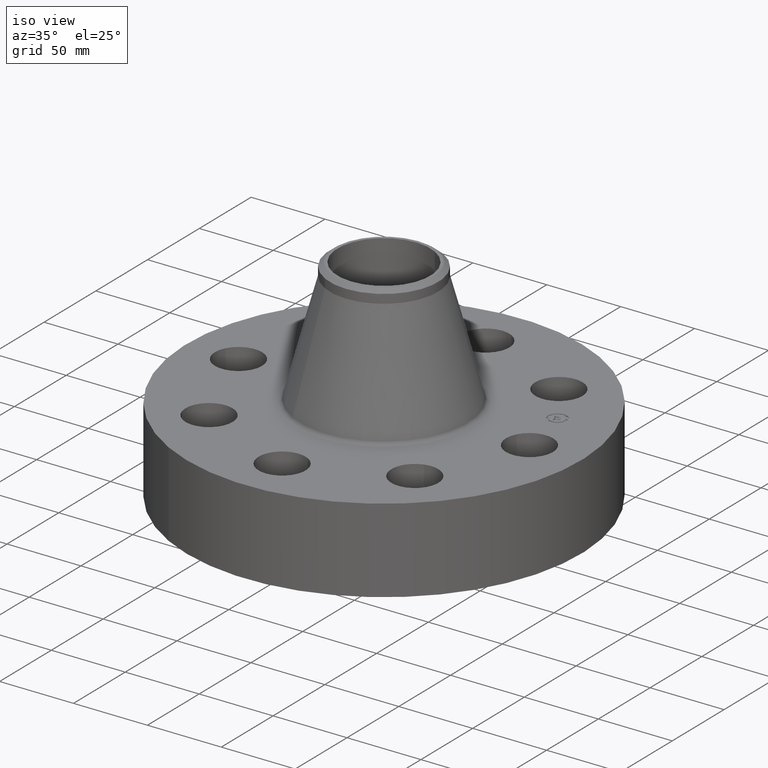
[diagram: clean part render]
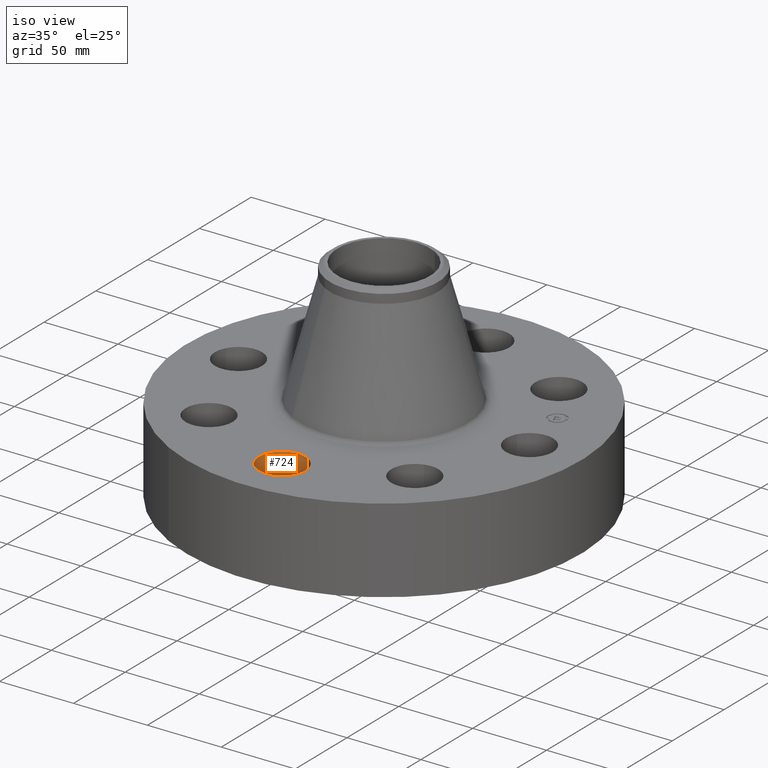
[diagram: same view with one face highlighted and labeled with its STEP entity id]
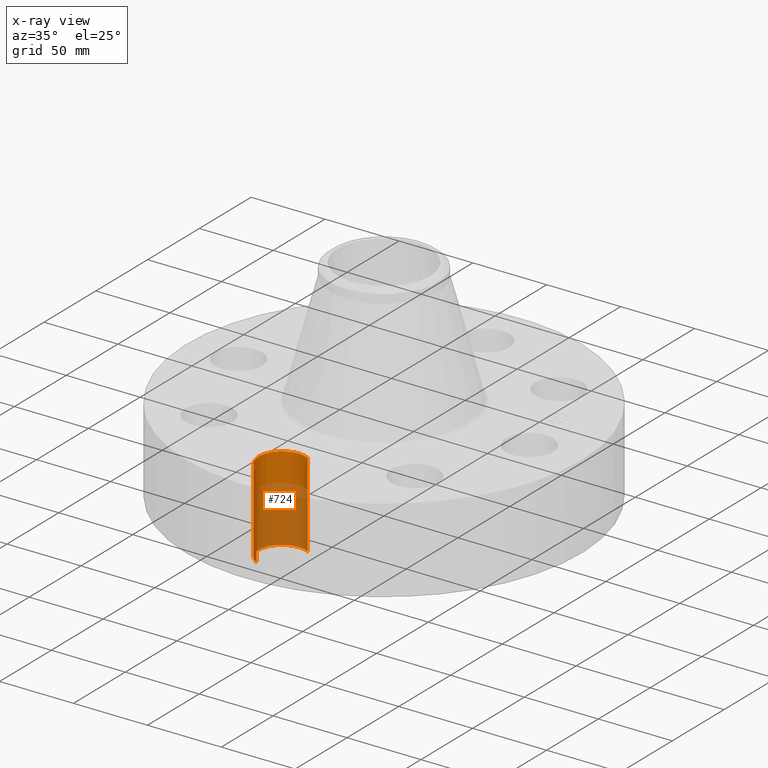
[diagram: x-ray of the same camera — body ghosted, the highlighted face saturated]
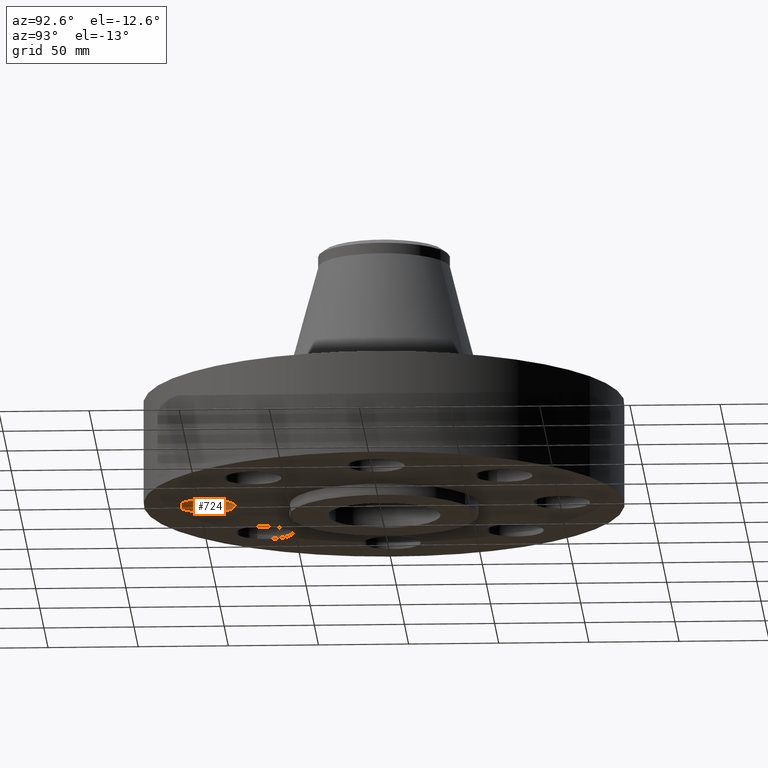
[diagram: same view with one face highlighted and labeled with its STEP entity id]
A machine part, iso view. The second image highlights one B-rep face of the part: STEP entity #724.
The next image is the same camera in x-ray: the body ghosted, the highlighted face saturated — about 60% of this face is hidden behind the body in this view.
A second angle (auxiliary view) of the same face is appended — the face is thin or edge-on in the first view.
In plain terms, the highlighted cylindrical surface (edge-blend (fillet) strip) has radius 15.875 mm, axis along (0, -0, -1).
Its self-contained STEP definition (entity closure, byte-faithful):
#541=AXIS2_PLACEMENT_3D('Circle Axis2P3D',#539,#540,$) ;
#685=AXIS2_PLACEMENT_3D('Cylinder Axis2P3D',#682,#683,#684) ;
#715=AXIS2_PLACEMENT_3D('Circle Axis2P3D',#713,#714,$) ;
#534=CARTESIAN_POINT('Vertex',(0.299640961629,-3.32651089883,0.)) ;
#536=CARTESIAN_POINT('Vertex',(-0.299640961629,-4.4234891012,-2.79741234551E-016)) ;
#539=CARTESIAN_POINT('Axis2P3D Location',(4.19611851827E-016,-3.87500000002,0.)) ;
#682=CARTESIAN_POINT('Axis2P3D Location',(2.37275317336E-016,-3.87500000002,2.24606299213)) ;
#687=CARTESIAN_POINT('Line Origine',(0.299640961629,-3.32651089883,1.125)) ;
#691=CARTESIAN_POINT('Vertex',(0.299640961629,-3.32651089883,2.25000000001)) ;
#694=CARTESIAN_POINT('Line Origine',(-0.299640961629,-4.4234891012,1.125)) ;
#698=CARTESIAN_POINT('Vertex',(-0.299640961629,-4.4234891012,2.25000000001)) ;
#713=CARTESIAN_POINT('Axis2P3D Location',(2.37275317336E-016,-3.87500000002,2.25000000001)) ;
#540=DIRECTION('Axis2P3D Direction',(0.,0.,-0.0393700787402)) ;
#683=DIRECTION('Axis2P3D Direction',(0.,-0.,-0.0393700787402)) ;
#684=DIRECTION('Axis2P3D XDirection',(-0.0188750212049,-0.0345504945626,0.)) ;
#688=DIRECTION('Vector Direction',(0.,0.,-0.0393700787402)) ;
#695=DIRECTION('Vector Direction',(0.,0.,-0.0393700787402)) ;
#714=DIRECTION('Axis2P3D Direction',(0.,-0.,-0.0393700787402)) ;
#689=VECTOR('Line Direction',#688,0.0393700787402) ;
#696=VECTOR('Line Direction',#695,0.0393700787402) ;
#719=ORIENTED_EDGE('',*,*,#700,.F.) ;
#720=ORIENTED_EDGE('',*,*,#543,.T.) ;
#721=ORIENTED_EDGE('',*,*,#693,.T.) ;
#722=ORIENTED_EDGE('',*,*,#717,.F.) ;
#724=ADVANCED_FACE('PartBody',(#723),#686,.F.) ;
#542=CIRCLE('generated circle',#541,0.625000000002) ;
#716=CIRCLE('generated circle',#715,0.625000000002) ;
#686=CYLINDRICAL_SURFACE('generated cylinder',#685,0.625000000002) ;
#543=EDGE_CURVE('',#537,#535,#542,.T.) ;
#693=EDGE_CURVE('',#535,#692,#690,.F.) ;
#700=EDGE_CURVE('',#537,#699,#697,.F.) ;
#717=EDGE_CURVE('',#699,#692,#716,.T.) ;
#718=EDGE_LOOP('',(#719,#720,#721,#722)) ;
#723=FACE_OUTER_BOUND('',#718,.T.) ;
#690=LINE('Line',#687,#689) ;
#697=LINE('Line',#694,#696) ;
#535=VERTEX_POINT('',#534) ;
#537=VERTEX_POINT('',#536) ;
#692=VERTEX_POINT('',#691) ;
#699=VERTEX_POINT('',#698) ;